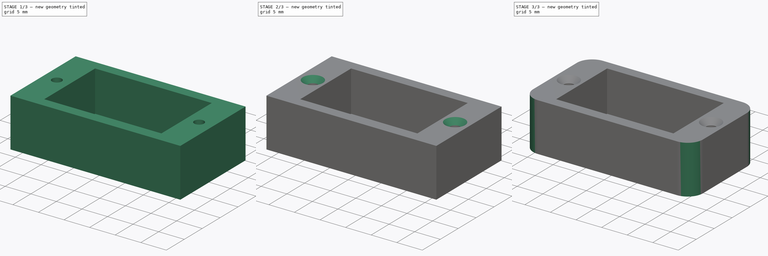
[diagram: build sequence overview — one tinted view per stage of 3, left to right]
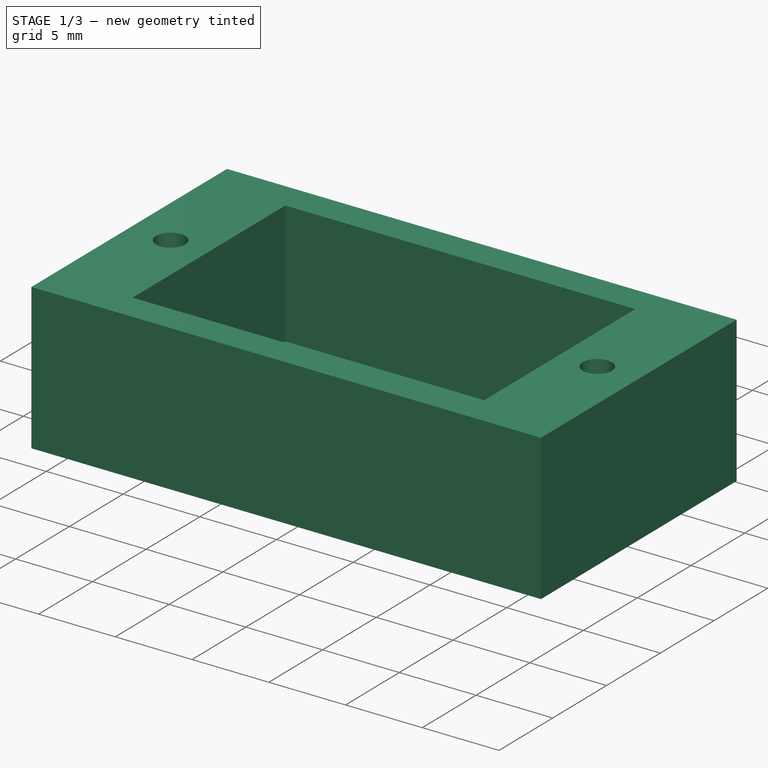
[diagram: stage 1 of 3 — iso view after this stage's code; geometry added in this stage tinted green]
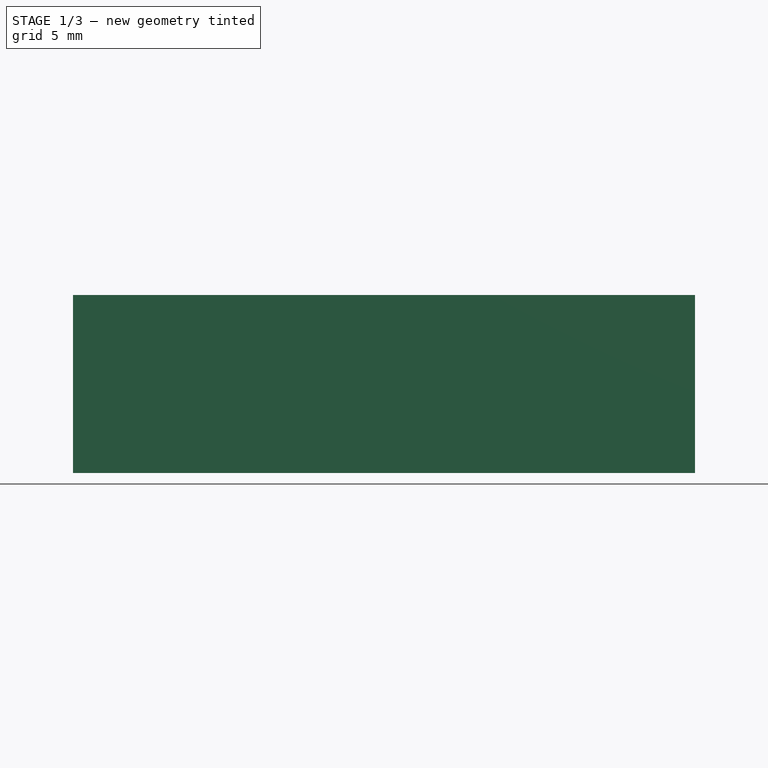
[diagram: stage 1 of 3 — front view after this stage's code; geometry added in this stage tinted green]
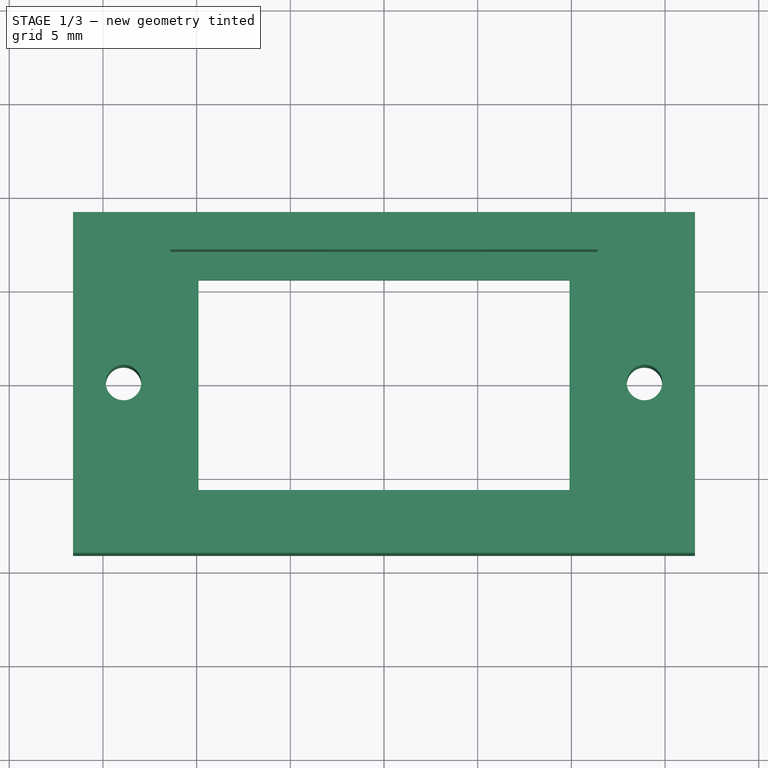
[diagram: stage 1 of 3 — top view after this stage's code; geometry added in this stage tinted green]
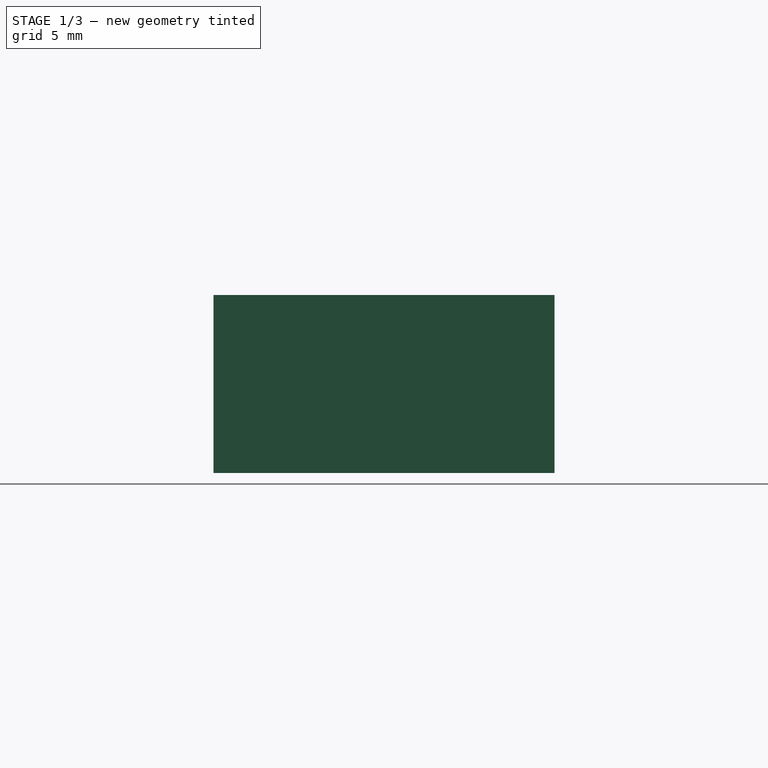
[diagram: stage 1 of 3 — right view after this stage's code; geometry added in this stage tinted green]
FCSTD DOCUMENT  (FreeCAD 0.21R33771 (Git))
Label: tampa
License: All rights reserved
LicenseURL: https://en.wikipedia.org/wiki/All_rights_reserved
objects: Sketcher::SketchObject×2, PartDesign::Pad×2, PartDesign::Fillet×2, PartDesign::Chamfer×1, PartDesign::Body×1
note: 13 computed .brp shape members not serialized (recipe doc carries the construction recipe); baked Part::Feature solids carry a one-line shape summary decoded from their .brp

FEATURE [Sketcher::SketchObject] Sketch
  FullyConstrained = true
  MapMode = 5
  Support = -> [XY_Plane]
  sketch-geometry (13):
    g0: LineSegment StartX=-16.6 StartY=9.1 StartZ=0 EndX=16.6 EndY=9.1 EndZ=0
    g1: LineSegment StartX=16.6 StartY=9.1 StartZ=0 EndX=16.6 EndY=-9.1 EndZ=0
    g2: LineSegment StartX=16.6 StartY=-9.1 StartZ=0 EndX=-16.6 EndY=-9.1 EndZ=0
    g3: LineSegment StartX=-16.6 StartY=-9.1 StartZ=0 EndX=-16.6 EndY=9.1 EndZ=0
    g4: LineSegment StartX=-12.6 StartY=0 StartZ=0 EndX=12.6 EndY=0 EndZ=0
    g5: Circle CenterX=-13.9 CenterY=0 CenterZ=0 NormalX=0 NormalY=0 NormalZ=1 AngleXU=0 Radius=1.3
    g6: Circle CenterX=13.9 CenterY=0 CenterZ=0 NormalX=0 NormalY=0 NormalZ=1 AngleXU=0 Radius=1.3
    g7: Circle CenterX=-13.9 CenterY=0 CenterZ=0 NormalX=0 NormalY=0 NormalZ=1 AngleXU=0 Radius=0.95
    g8: Circle CenterX=13.9 CenterY=0 CenterZ=0 NormalX=0 NormalY=0 NormalZ=1 AngleXU=0 Radius=0.95
    g9: LineSegment StartX=-11.4 StartY=7.1 StartZ=0 EndX=11.4 EndY=7.1 EndZ=0
    g10: LineSegment StartX=11.4 StartY=7.1 StartZ=0 EndX=11.4 EndY=-7.1 EndZ=0
    g11: LineSegment StartX=11.4 StartY=-7.1 StartZ=0 EndX=-11.4 EndY=-7.1 EndZ=0
    g12: LineSegment StartX=-11.4 StartY=-7.1 StartZ=0 EndX=-11.4 EndY=7.1 EndZ=0
  constraints (33):
    c: Coincident(g0,g1)
    c: Coincident(g1,g2)
    c: Coincident(g2,g3)
    c: Coincident(g3,g0)
    c: Horizontal(g2)
    c: Vertical(g1)
    c: Symmetric(g0,g0,g-2)
    c: Symmetric(g0,g2,g-1)
    c: DistanceX(g0,g0) = 33.2
    c: PointOnObject(g4,g-1)
    c: PointOnObject(g4,g-1)
    c: DistanceX(g4,g4) = 25.2
    c: Symmetric(g6,g5,g-2)
    c: Equal(g5,g6)
    c: PointOnObject(g5,g-1)
    c: PointOnObject(g4,g6)
    c: PointOnObject(g4,g5)
    c: Diameter(g5) = 2.6
    c: Coincident(g7,g5)
    c: Coincident(g8,g6)
    c: Equal(g8,g7)
    c: Diameter(g8) = 1.9
    c: Coincident(g9,g10)
    c: Coincident(g10,g11)
    c: Coincident(g11,g12)
    c: Coincident(g12,g9)
    c: Horizontal(g11)
    c: Vertical(g10)
    c: Symmetric(g9,g11,g4)
    c: Symmetric(g9,g9,g-2)
    c: DistanceY(g10,g10) = 14.2
    c: DistanceY(g9,g0) = 2
    c: DistanceX(g11,g11) = 22.8
FEATURE [PartDesign::Pad] Pad
  Direction = (0,0,1)
  Length = 9.5
  Length2 = 10
  Profile = -> Sketch
  ReferenceAxis = -> Sketch [N_Axis]
  Type = 0
FEATURE [Sketcher::SketchObject] Sketch001
  ExternalGeometry = -> [Pad]
  FullyConstrained = true
  MapMode = 5
  Placement = pos=(0,0,0) rot=(1,0,0;3.14159rad)
  Support = -> [Pad]
  sketch-geometry (8):
    g0: LineSegment StartX=-11.4 StartY=7.1 StartZ=0 EndX=11.4 EndY=7.1 EndZ=0
    g1: LineSegment StartX=11.4 StartY=7.1 StartZ=0 EndX=11.4 EndY=-7.1 EndZ=0
    g2: LineSegment StartX=11.4 StartY=-7.1 StartZ=0 EndX=-11.4 EndY=-7.1 EndZ=0
    g3: LineSegment StartX=-11.4 StartY=-7.1 StartZ=0 EndX=-11.4 EndY=7.1 EndZ=0
    g4: LineSegment StartX=-9.9 StartY=5.6 StartZ=0 EndX=9.9 EndY=5.6 EndZ=0
    g5: LineSegment StartX=9.9 StartY=5.6 StartZ=0 EndX=9.9 EndY=-5.6 EndZ=0
    g6: LineSegment StartX=9.9 StartY=-5.6 StartZ=0 EndX=-9.9 EndY=-5.6 EndZ=0
    g7: LineSegment StartX=-9.9 StartY=-5.6 StartZ=0 EndX=-9.9 EndY=5.6 EndZ=0
  constraints (20):
    c: Coincident(g0,g1)
    c: Coincident(g1,g2)
    c: Coincident(g2,g3)
    c: Coincident(g3,g0)
    c: Horizontal(g0)
    c: Horizontal(g2)
    c: Vertical(g1)
    c: Vertical(g3)
    c: Coincident(g0,g-4)
    c: Coincident(g1,g-5)
    c: Coincident(g4,g5)
    c: Coincident(g5,g6)
    c: Coincident(g6,g7)
    c: Coincident(g7,g4)
    c: Horizontal(g6)
    c: Vertical(g5)
    c: Symmetric(g4,g4,g-2)
    c: Symmetric(g6,g4,g-1)
    c: DistanceY(g4,g0) = 1.5
    c: DistanceX(g4,g0) = 1.5
FEATURE [PartDesign::Pad] Pad001
  BaseFeature = -> Pad
  Direction = (0,0,-1)
  Length = 1.5
  Length2 = 10
  Profile = -> Sketch001
  ReferenceAxis = -> Sketch001 [N_Axis]
  Reversed = true
  Type = 0
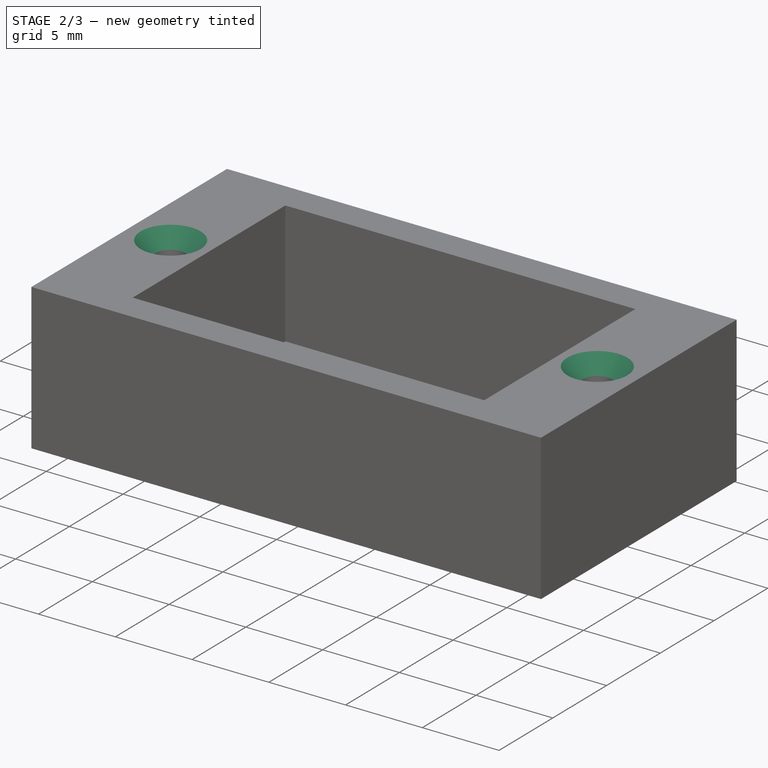
[diagram: stage 2 of 3 — iso view after this stage's code; geometry added in this stage tinted green]
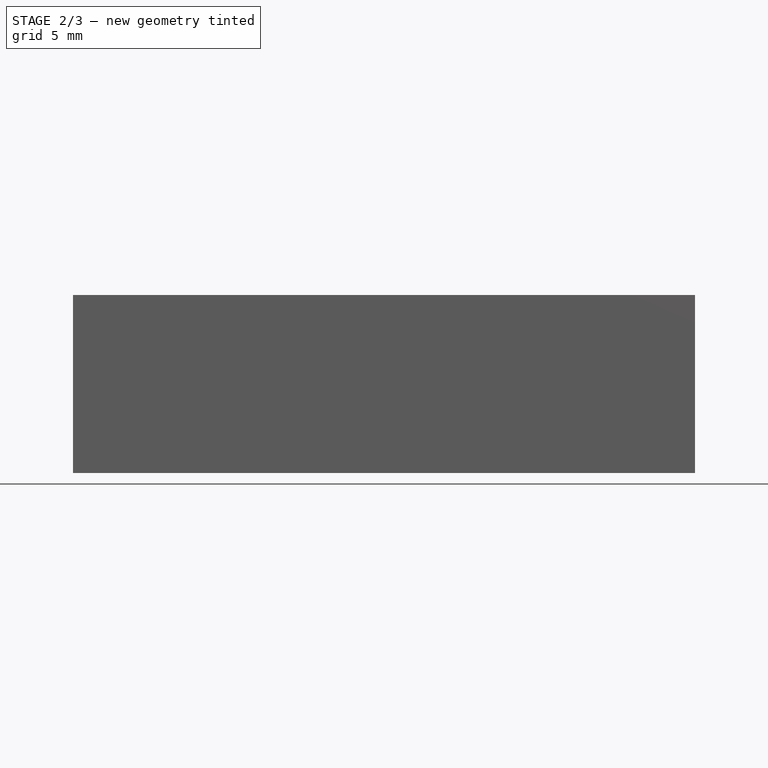
[diagram: stage 2 of 3 — front view after this stage's code; geometry added in this stage tinted green]
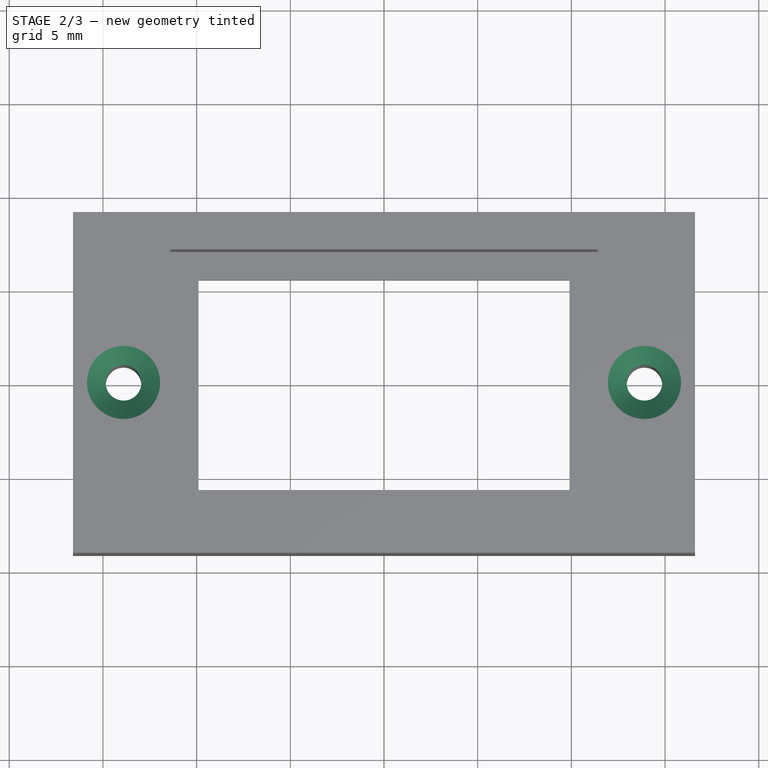
[diagram: stage 2 of 3 — top view after this stage's code; geometry added in this stage tinted green]
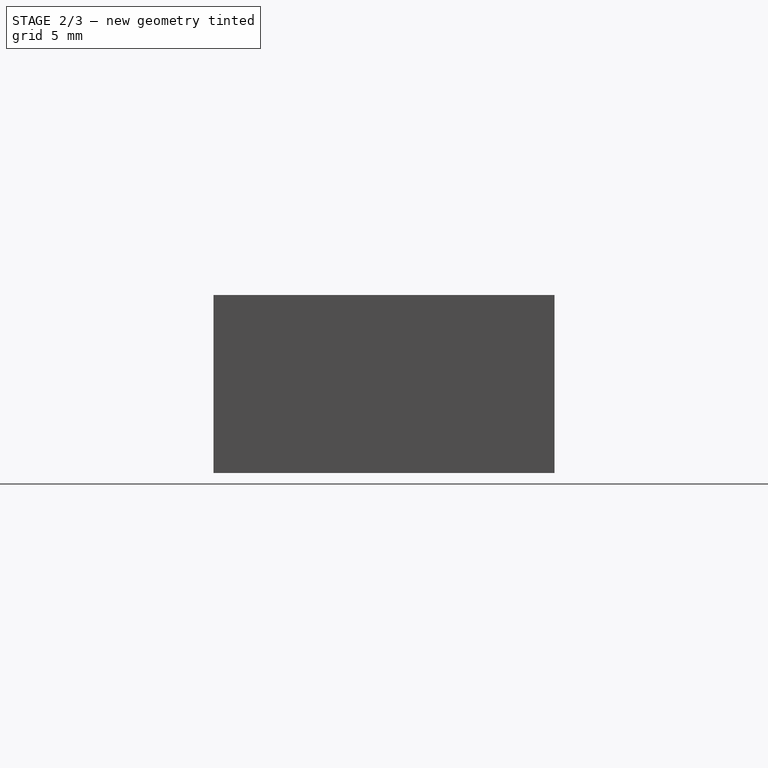
[diagram: stage 2 of 3 — right view after this stage's code; geometry added in this stage tinted green]
FEATURE [PartDesign::Chamfer] Chamfer
  Angle = 45
  Base = -> Pad001 [Edge23,Edge24]
  BaseFeature = -> Pad001
  ChamferType = 0
  FlipDirection = false
  Size = 1
  Size2 = 1
  SupportTransform = false
  UseAllEdges = false
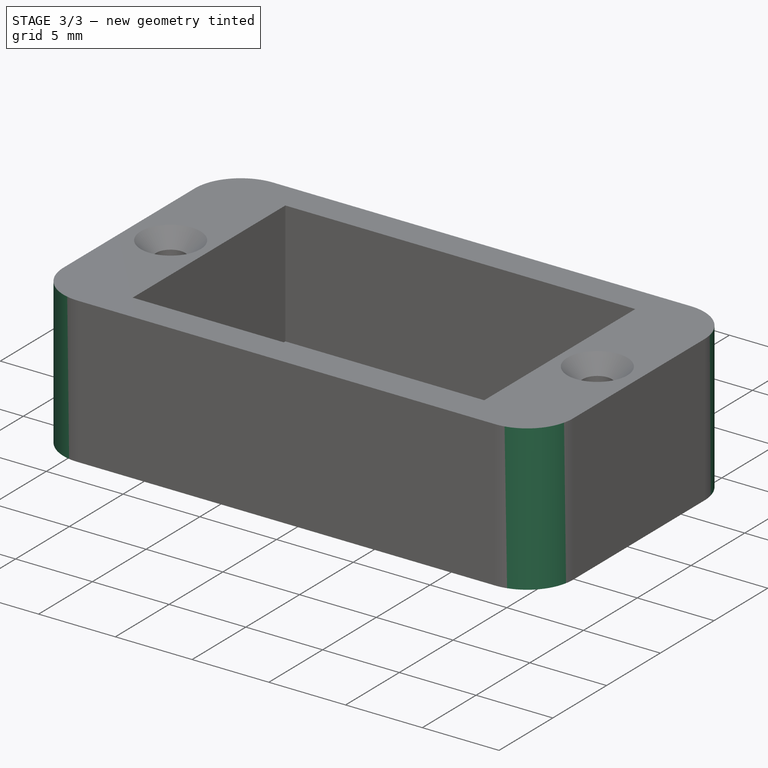
[diagram: stage 3 of 3 — iso view after this stage's code; geometry added in this stage tinted green]
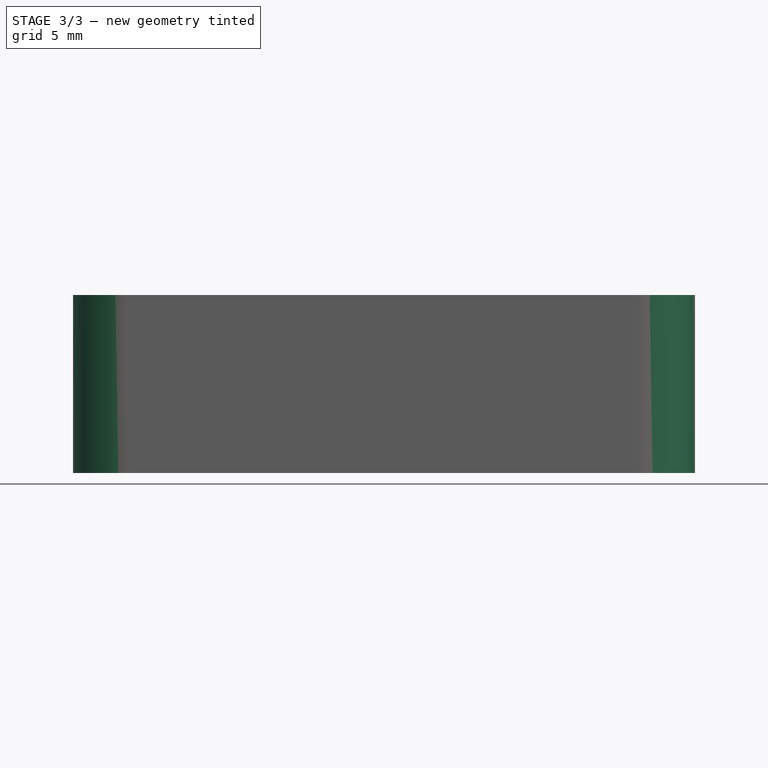
[diagram: stage 3 of 3 — front view after this stage's code; geometry added in this stage tinted green]
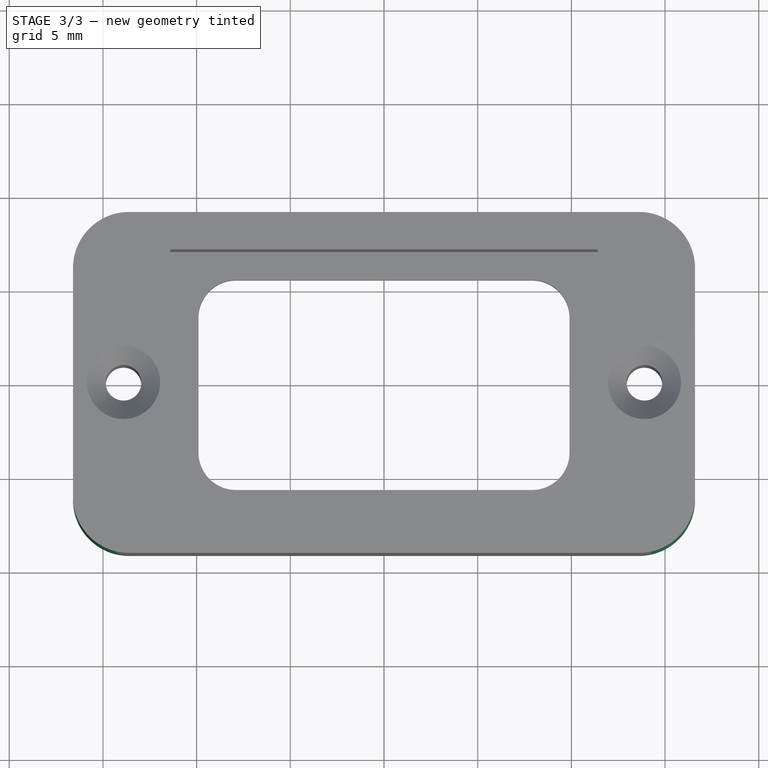
[diagram: stage 3 of 3 — top view after this stage's code; geometry added in this stage tinted green]
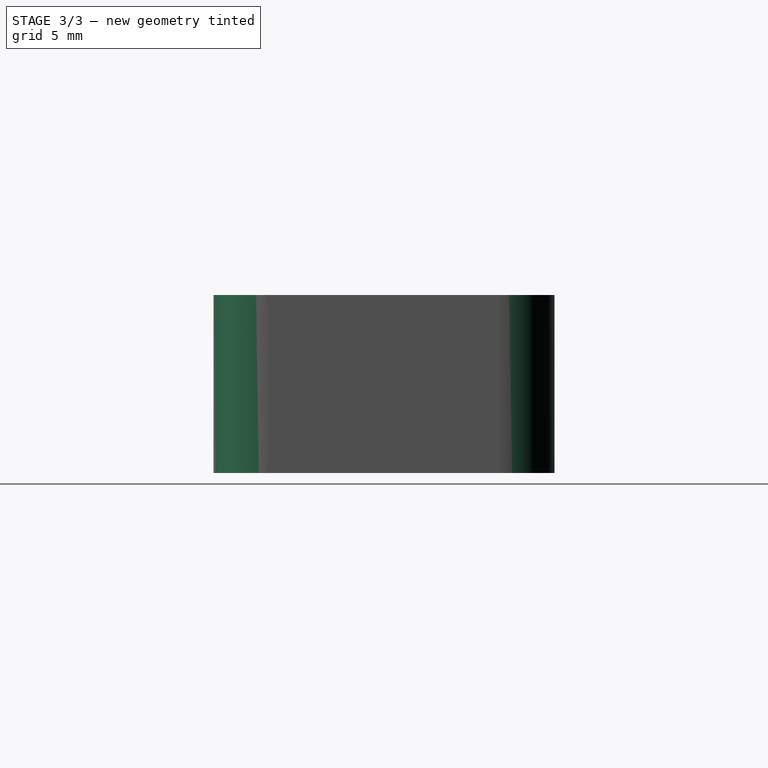
[diagram: stage 3 of 3 — right view after this stage's code; geometry added in this stage tinted green]
FEATURE [PartDesign::Fillet] Fillet
  Base = -> Chamfer [Edge48,Edge47,Edge50,Edge49]
  BaseFeature = -> Chamfer
  Radius = 2
  SupportTransform = false
  UseAllEdges = false
FEATURE [PartDesign::Fillet] Fillet001
  Base = -> Fillet [Edge56,Edge55,Edge57,Edge58]
  BaseFeature = -> Fillet
  Radius = 3
  SupportTransform = false
  UseAllEdges = false
FEATURE [PartDesign::Body] Body
  Group = -> [Sketch,Pad,Sketch001,Pad001,Chamfer,Fillet,Fillet001]
  Origin = -> Origin
  Tip = -> Fillet001
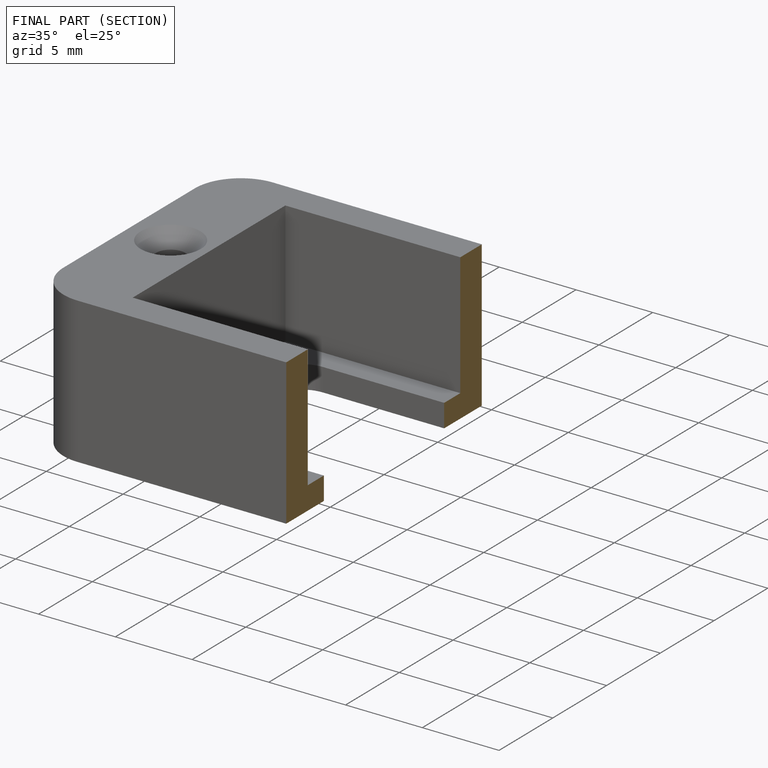
[diagram: finished part — half-section view (interior)]
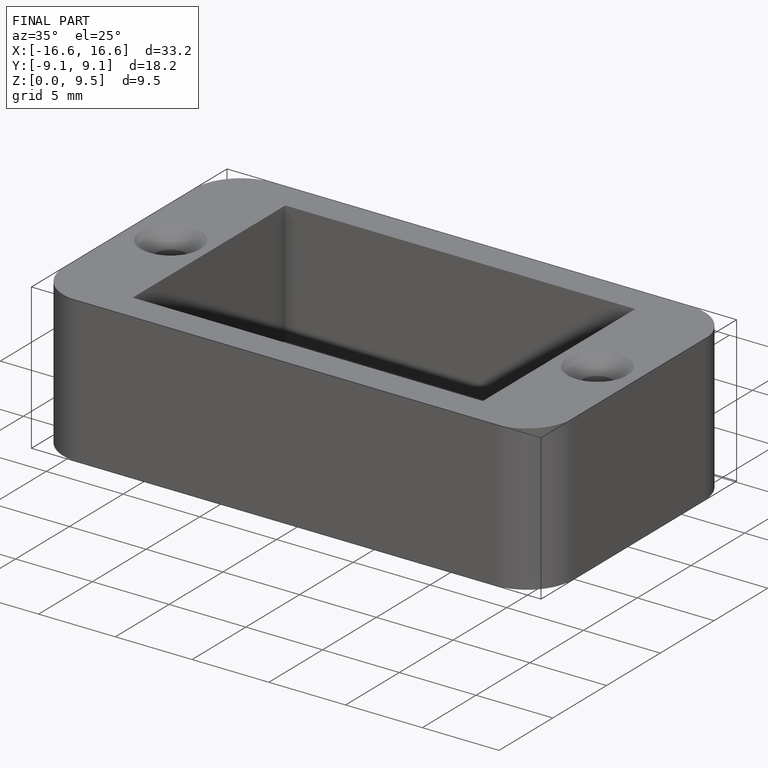
[diagram: finished part — iso view with bounding-box wireframe]
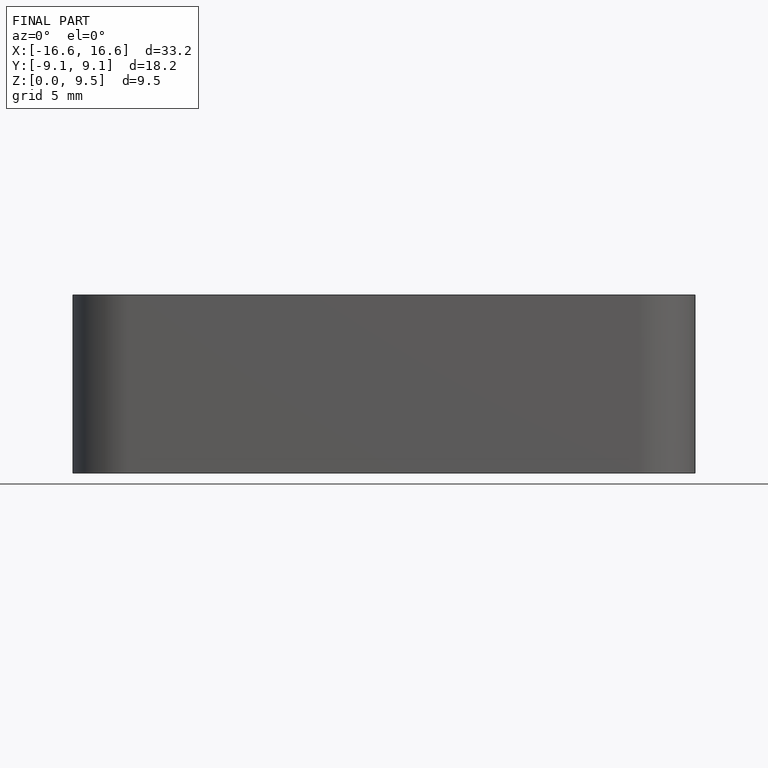
[diagram: finished part — front view with bounding-box wireframe]
